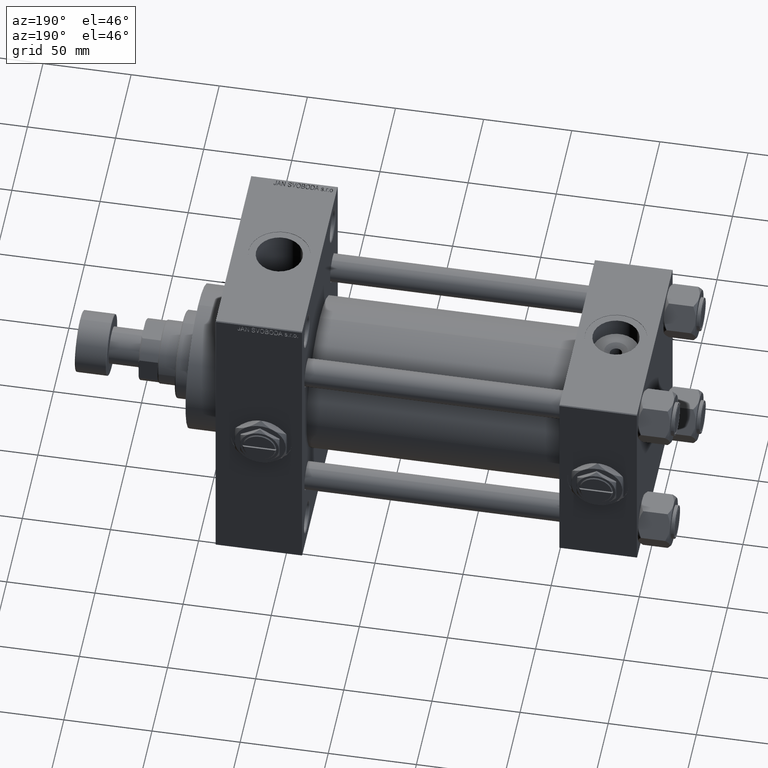
[diagram: clean part render]
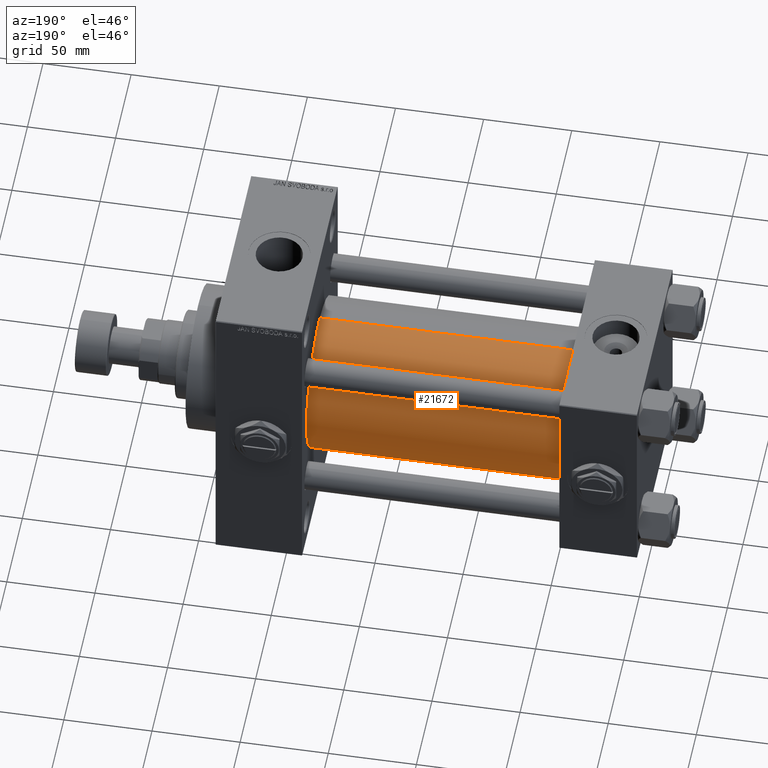
[diagram: same view with one face highlighted and labeled with its STEP entity id]
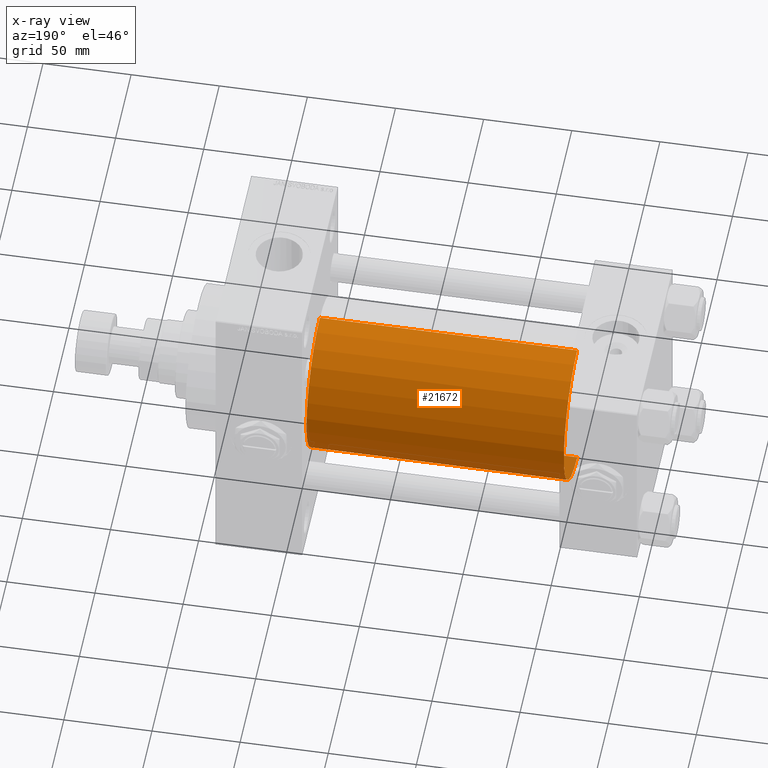
[diagram: x-ray of the same camera — body ghosted, the highlighted face saturated]
A machine part, auxiliary view. The second image highlights one B-rep face of the part: STEP entity #21672.
The next image is the same camera in x-ray: the body ghosted, the highlighted face saturated — about 1% of this face is hidden behind the body in this view.
In plain terms, the highlighted cylindrical surface (partial cylindrical patch) has radius 43 mm, axis along (-1, -0, -0).
Its self-contained STEP definition (entity closure, byte-faithful):
#119 = ORIENTED_EDGE ( 'NONE', *, *, #30776, .F. ) ;
#2635 = AXIS2_PLACEMENT_3D ( 'NONE', #8564, #24327, #40349 ) ;
#3872 = ORIENTED_EDGE ( 'NONE', *, *, #12240, .T. ) ;
#5043 = CYLINDRICAL_SURFACE ( 'NONE', #36975, 43.00000000000000000 ) ;
#8564 = CARTESIAN_POINT ( 'NONE',  ( 190.0000000000000000, -2.602085213965210642E-15, 0.000000000000000000 ) ) ;
#9953 = DIRECTION ( 'NONE',  ( -1.000000000000000000, -0.000000000000000000, -0.000000000000000000 ) ) ;
#10071 = DIRECTION ( 'NONE',  ( 0.000000000000000000, 0.000000000000000000, 1.000000000000000000 ) ) ;
#10772 = AXIS2_PLACEMENT_3D ( 'NONE', #37287, #40857, #10071 ) ;
#11019 = CARTESIAN_POINT ( 'NONE',  ( 43.99999999999998579, -2.602085213965210642E-15, 43.00000000000000000 ) ) ;
#12240 = EDGE_CURVE ( 'NONE', #17520, #37478, #21354, .T. ) ;
#12986 = EDGE_CURVE ( 'NONE', #33854, #17520, #47806, .T. ) ;
#14609 = CARTESIAN_POINT ( 'NONE',  ( 190.0000000000000000, 2.663896022368408223E-15, -43.00000000000000000 ) ) ;
#16517 = DIRECTION ( 'NONE',  ( -1.000000000000000000, -0.000000000000000000, -0.000000000000000000 ) ) ;
#16726 = DIRECTION ( 'NONE',  ( -1.000000000000000000, -0.000000000000000000, -0.000000000000000000 ) ) ;
#17520 = VERTEX_POINT ( 'NONE', #30372 ) ;
#17720 = DIRECTION ( 'NONE',  ( 0.000000000000000000, 0.000000000000000000, 1.000000000000000000 ) ) ;
#21354 = CIRCLE ( 'NONE', #10772, 43.00000000000000000 ) ;
#21672 = ADVANCED_FACE ( 'NONE', ( #24356 ), #5043, .T. ) ;
#21866 = ORIENTED_EDGE ( 'NONE', *, *, #41543, .F. ) ;
#23930 = CARTESIAN_POINT ( 'NONE',  ( 190.0000000000000000, -2.602085213965210642E-15, 43.00000000000000000 ) ) ;
#24327 = DIRECTION ( 'NONE',  ( 1.000000000000000000, 0.000000000000000000, 0.000000000000000000 ) ) ;
#24356 = FACE_OUTER_BOUND ( 'NONE', #42588, .T. ) ;
#25727 = CARTESIAN_POINT ( 'NONE',  ( 190.0000000000000000, -2.602085213965210642E-15, 43.00000000000000000 ) ) ;
#28974 = CARTESIAN_POINT ( 'NONE',  ( 190.0000000000000000, 2.663896022368408223E-15, -43.00000000000000000 ) ) ;
#30372 = CARTESIAN_POINT ( 'NONE',  ( 43.99999999999998579, 2.663896022368408223E-15, -43.00000000000000000 ) ) ;
#30776 = EDGE_CURVE ( 'NONE', #32618, #37478, #37669, .T. ) ;
#32618 = VERTEX_POINT ( 'NONE', #23930 ) ;
#33474 = CIRCLE ( 'NONE', #2635, 43.00000000000000000 ) ;
#33854 = VERTEX_POINT ( 'NONE', #14609 ) ;
#34434 = ORIENTED_EDGE ( 'NONE', *, *, #12986, .T. ) ;
#34841 = VECTOR ( 'NONE', #9953, 1000.000000000000000 ) ;
#36064 = CARTESIAN_POINT ( 'NONE',  ( 190.0000000000000000, -2.602085213965210642E-15, 0.000000000000000000 ) ) ;
#36975 = AXIS2_PLACEMENT_3D ( 'NONE', #36064, #16726, #17720 ) ;
#37287 = CARTESIAN_POINT ( 'NONE',  ( 43.99999999999998579, -2.602085213965210642E-15, 0.000000000000000000 ) ) ;
#37478 = VERTEX_POINT ( 'NONE', #11019 ) ;
#37669 = LINE ( 'NONE', #25727, #34841 ) ;
#39259 = VECTOR ( 'NONE', #16517, 1000.000000000000000 ) ;
#40349 = DIRECTION ( 'NONE',  ( 0.000000000000000000, 0.000000000000000000, -1.000000000000000000 ) ) ;
#40857 = DIRECTION ( 'NONE',  ( 1.000000000000000000, -0.000000000000000000, 0.000000000000000000 ) ) ;
#41543 = EDGE_CURVE ( 'NONE', #33854, #32618, #33474, .T. ) ;
#42588 = EDGE_LOOP ( 'NONE', ( #21866, #34434, #3872, #119 ) ) ;
#47806 = LINE ( 'NONE', #28974, #39259 ) ;